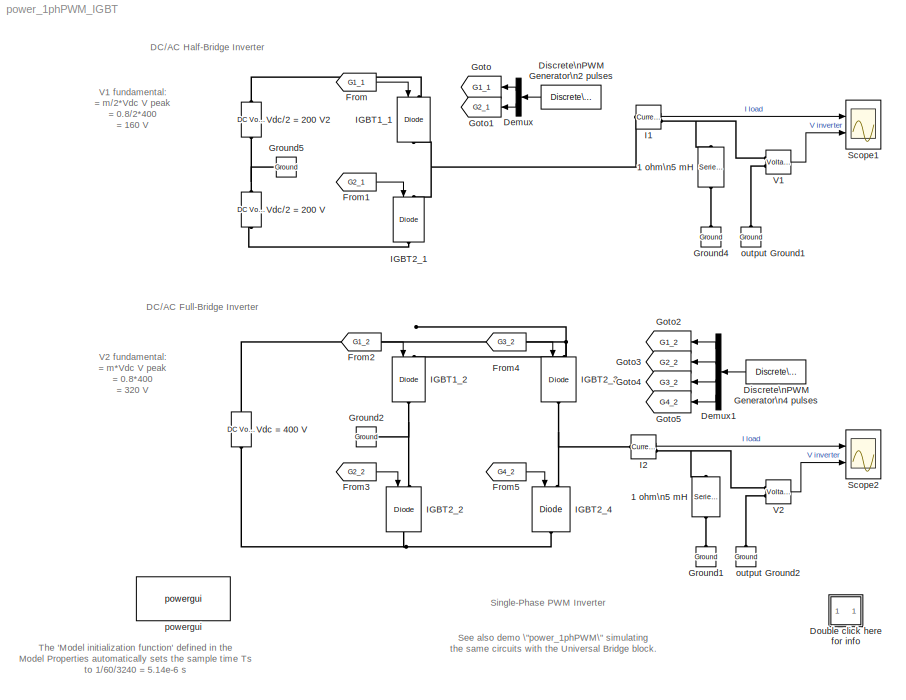
MODEL power_1phPWM_IGBT
KIND model
CONFIG InitFcn = Ts=1/60/3240;
BLOCK [Reference] 1 ohm\n5 mH  REF=powerlib/Elements/Series RLC Branch
  AttributesFormatString = \\n
  BranchType = RL
  Capacitance = []
  Inductance = 5e-03
  InitialCurrent = 0
  InitialVoltage = 0
  LConnTagsString = __new0
  Measurements = None
  Ports = [0, 0, 0, 0, 0, 1, 1]
  RConnTagsString = __new0
  Resistance = 1
  SID = 1
  SetiL0 = off
  Setx0 = off
  SourceBlock = powerlib/Elements/Series RLC Branch
  SourceType = Series RLC Branch
BLOCK [Reference] 1 ohm\n5 mH   REF=powerlib/Elements/Series RLC Branch
  AttributesFormatString = \\n
  BranchType = RL
  Capacitance = []
  Inductance = 5e-03
  InitialCurrent = 0
  InitialVoltage = 0
  LConnTagsString = __new0
  Measurements = None
  Ports = [0, 0, 0, 0, 0, 1, 1]
  RConnTagsString = __new0
  Resistance = 1
  SID = 2
  SetiL0 = off
  Setx0 = off
  SourceBlock = powerlib/Elements/Series RLC Branch
  SourceType = Series RLC Branch
BLOCK [Demux] Demux
  DisplayOption = bar
  Outputs = 2
  Ports = [1, 2]
  SID = 3
BLOCK [Demux] Demux1
  DisplayOption = bar
  Ports = [1, 4]
  SID = 4
BLOCK [Reference] Discrete\nPWM Generator\n2 pulses  REF=powerlib_extras/Discrete \nControl Blocks/Discrete\nPWM Generator
  Fc = 1080
  Freq = 60
  GeneratorMode = 1-arm  bridge (2 pulses)
  Internal = on
  Phase = 0
  Ports = [0, 1]
  SID = 5
  SourceBlock = powerlib_extras/Discrete \nControl Blocks/Discrete\nPWM Generator
  SourceType = Discrete PWM Generator
  Ts = Ts
  mIndex = 0.8
BLOCK [Reference] Discrete\nPWM Generator\n4 pulses  REF=powerlib_extras/Discrete \nControl Blocks/Discrete\nPWM Generator
  Fc = 1080
  Freq = 60
  GeneratorMode = 2-arm  bridge (4 pulses)
  Internal = on
  Phase = 0
  Ports = [0, 1]
  SID = 6
  SourceBlock = powerlib_extras/Discrete \nControl Blocks/Discrete\nPWM Generator
  SourceType = Discrete PWM Generator
  Ts = Ts
  mIndex = 0.8
BLOCK [SubSystem] Double click here for info
  FunctionWithSeparateData = off
  MaskDisplay = disp('?')
  MaskHideContents = off
  MaskIconFrame = on
  MaskIconOpaque = on
  MaskIconRotate = none
  MaskIconUnits = autoscale
  MaskPortRotate = default
  MinAlgLoopOccurrences = off
  Opaque = off
  OpenFcn = showdemo(bdroot(gcb))
  Ports = []
  PropExecContextOutsideSubsystem = off
  RTWSystemCode = Auto
  RequestExecContextInheritance = off
  SID = 7
BLOCK [From] From
  CloseFcn = tagdialog Close
  GotoTag = G1_1
  SID = 8
BLOCK [From] From1
  CloseFcn = tagdialog Close
  GotoTag = G2_1
  SID = 9
BLOCK [From] From2
  CloseFcn = tagdialog Close
  GotoTag = G1_2
  SID = 10
BLOCK [From] From3
  CloseFcn = tagdialog Close
  GotoTag = G2_2
  SID = 11
BLOCK [From] From4
  CloseFcn = tagdialog Close
  GotoTag = G3_2
  SID = 12
BLOCK [From] From5
  CloseFcn = tagdialog Close
  GotoTag = G4_2
  SID = 13
BLOCK [Goto] Goto
  GotoTag = G1_1
  SID = 14
BLOCK [Goto] Goto1
  GotoTag = G2_1
  SID = 15
BLOCK [Goto] Goto2
  GotoTag = G1_2
  SID = 16
BLOCK [Goto] Goto3
  GotoTag = G2_2
  SID = 17
BLOCK [Goto] Goto4
  GotoTag = G3_2
  SID = 18
BLOCK [Goto] Goto5
  GotoTag = G4_2
  SID = 19
BLOCK [Reference] Ground1  REF=powerlib/Elements/Ground
  AttributesFormatString = \\n
  LConnTagsString = a
  Ports = [0, 0, 0, 0, 0, 1]
  SID = 20
  SourceBlock = powerlib/Elements/Ground
  SourceType = Ground
BLOCK [Reference] Ground2  REF=powerlib/Elements/Ground
  AttributesFormatString = \\n
  LConnTagsString = a
  Ports = [0, 0, 0, 0, 0, 1]
  SID = 21
  SourceBlock = powerlib/Elements/Ground
  SourceType = Ground
BLOCK [Reference] Ground4  REF=powerlib/Elements/Ground
  AttributesFormatString = \\n
  LConnTagsString = a
  Ports = [0, 0, 0, 0, 0, 1]
  SID = 22
  SourceBlock = powerlib/Elements/Ground
  SourceType = Ground
BLOCK [Reference] Ground5  REF=powerlib/Elements/Ground
  AttributesFormatString = \\n
  LConnTagsString = a
  Ports = [0, 0, 0, 0, 0, 1]
  SID = 23
  SourceBlock = powerlib/Elements/Ground
  SourceType = Ground
BLOCK [Reference] I1  REF=powerlib/Measurements/Current Measurement
  AttributesFormatString = \\n
  OutputType = Magnitude
  PSBequivalent = 0
  PhasorSimulation = off
  Ports = [0, 1, 0, 0, 0, 1, 1]
  SID = 24
  SourceBlock = powerlib/Measurements/Current Measurement
  SourceType = Current Measurement
  Tag = PoWeRsYsTeMmEaSuReMeNt
BLOCK [Reference] I2  REF=powerlib/Measurements/Current Measurement
  AttributesFormatString = \\n
  OutputType = Magnitude
  PSBequivalent = 0
  PhasorSimulation = off
  Ports = [0, 1, 0, 0, 0, 1, 1]
  SID = 25
  SourceBlock = powerlib/Measurements/Current Measurement
  SourceType = Current Measurement
  Tag = PoWeRsYsTeMmEaSuReMeNt
BLOCK [Reference] IGBT1_1  REF=powerlib/Power\nElectronics/IGBT//Diode
  Cs = inf
  Measurements = off
  Ports = [1, 0, 0, 0, 0, 1, 1]
  Ron = 1e-3
  Rs = 1e5
  SID = 26
  SourceBlock = powerlib/Power\nElectronics/IGBT//Diode
  SourceType = IGBT/Diode
BLOCK [Reference] IGBT1_2  REF=powerlib/Power\nElectronics/IGBT//Diode
  Cs = inf
  Measurements = off
  Ports = [1, 0, 0, 0, 0, 1, 1]
  Ron = 1e-3
  Rs = 1e5
  SID = 27
  SourceBlock = powerlib/Power\nElectronics/IGBT//Diode
  SourceType = IGBT/Diode
BLOCK [Reference] IGBT2_1  REF=powerlib/Power\nElectronics/IGBT//Diode
  Cs = inf
  Measurements = off
  Ports = [1, 0, 0, 0, 0, 1, 1]
  Ron = 1e-3
  Rs = 1e5
  SID = 28
  SourceBlock = powerlib/Power\nElectronics/IGBT//Diode
  SourceType = IGBT/Diode
BLOCK [Reference] IGBT2_2  REF=powerlib/Power\nElectronics/IGBT//Diode
  Cs = inf
  Measurements = off
  Ports = [1, 0, 0, 0, 0, 1, 1]
  Ron = 1e-3
  Rs = 1e5
  SID = 29
  SourceBlock = powerlib/Power\nElectronics/IGBT//Diode
  SourceType = IGBT/Diode
BLOCK [Reference] IGBT2_3  REF=powerlib/Power\nElectronics/IGBT//Diode
  Cs = inf
  Measurements = off
  Ports = [1, 0, 0, 0, 0, 1, 1]
  Ron = 1e-3
  Rs = 1e5
  SID = 30
  SourceBlock = powerlib/Power\nElectronics/IGBT//Diode
  SourceType = IGBT/Diode
BLOCK [Reference] IGBT2_4  REF=powerlib/Power\nElectronics/IGBT//Diode
  Cs = inf
  Measurements = off
  Ports = [1, 0, 0, 0, 0, 1, 1]
  Ron = 1e-3
  Rs = 1e5
  SID = 31
  SourceBlock = powerlib/Power\nElectronics/IGBT//Diode
  SourceType = IGBT/Diode
BLOCK [Scope] Scope1
  DataFormat = StructureWithTime
  Floating = off
  LimitDataPoints = off
  MaxDataPoints = 500000
  NumInputPorts = 2
  Ports = [2]
  SID = 32
  SampleTime = 0
  SaveName = sps1phPWM1_str
  SaveToWorkspace = on
  ShowLegends = off
  TimeRange = 0.1
  YMax = 100~300
  YMin = -100~-300
  ZoomMode = xonly
BLOCK [Scope] Scope2
  DataFormat = StructureWithTime
  Floating = off
  LimitDataPoints = off
  MaxDataPoints = 500000
  NumInputPorts = 2
  Ports = [2]
  SID = 33
  SampleTime = 0
  SaveName = sps1phPWM2_str
  SaveToWorkspace = on
  ShowLegends = off
  TimeRange = 0.1
  YMax = 200~500
  YMin = -200~-500
  ZoomMode = xonly
BLOCK [Reference] V1  REF=powerlib/Measurements/Voltage Measurement
  AttributesFormatString = \\n
  OutputType = Magnitude
  PSBequivalent = 0
  PhasorSimulation = off
  Ports = [0, 1, 0, 0, 0, 2]
  SID = 34
  SourceBlock = powerlib/Measurements/Voltage Measurement
  SourceType = Voltage Measurement
  Tag = PoWeRsYsTeMmEaSuReMeNt
BLOCK [Reference] V2  REF=powerlib/Measurements/Voltage Measurement
  AttributesFormatString = \\n
  OutputType = Magnitude
  PSBequivalent = 0
  PhasorSimulation = off
  Ports = [0, 1, 0, 0, 0, 2]
  SID = 35
  SourceBlock = powerlib/Measurements/Voltage Measurement
  SourceType = Voltage Measurement
  Tag = PoWeRsYsTeMmEaSuReMeNt
BLOCK [Reference] Vdc = 400 V  REF=powerlib/Electrical\nSources/DC Voltage Source
  Amplitude = 400
  AttributesFormatString = \\n
  Description = source block
  Measurements = None
  Ports = [0, 0, 0, 0, 0, 1, 1]
  SID = 36
  SourceBlock = powerlib/Electrical\nSources/DC Voltage Source
  SourceType = DC Voltage Source
BLOCK [Reference] Vdc//2 = 200 V  REF=powerlib/Electrical\nSources/DC Voltage Source
  Amplitude = 200
  AttributesFormatString = \\n
  Description = source block
  Measurements = None
  Ports = [0, 0, 0, 0, 0, 1, 1]
  SID = 37
  SourceBlock = powerlib/Electrical\nSources/DC Voltage Source
  SourceType = DC Voltage Source
BLOCK [Reference] Vdc//2 = 200 V2  REF=powerlib/Electrical\nSources/DC Voltage Source
  Amplitude = 200
  AttributesFormatString = \\n
  Description = source block
  Measurements = None
  Ports = [0, 0, 0, 0, 0, 1, 1]
  SID = 38
  SourceBlock = powerlib/Electrical\nSources/DC Voltage Source
  SourceType = DC Voltage Source
BLOCK [Reference] output Ground1  REF=powerlib/Elements/Ground
  AttributesFormatString = \\n
  LConnTagsString = a
  Ports = [0, 0, 0, 0, 0, 1]
  SID = 39
  SourceBlock = powerlib/Elements/Ground
  SourceType = Ground
BLOCK [Reference] output Ground2  REF=powerlib/Elements/Ground
  AttributesFormatString = \\n
  LConnTagsString = a
  Ports = [0, 0, 0, 0, 0, 1]
  SID = 40
  SourceBlock = powerlib/Elements/Ground
  SourceType = Ground
BLOCK [Reference] powergui  REF=powerlib/powergui
  DisableRonSwitches = off
  DisableSnubberDevices = off
  DisableVfSwitches = off
  DisplayEquations = off
  DisplayStyle = 1
  EnableUseOfTLC = off
  ErrMax = 1e-4
  Frange = [0:2:500]
  FreqAxis = off
  FunctionMessages = off
  HookPort = off
  Interpol = off
  Iterations = 50
  MaxFrequency = 5000
  Pbase = 100e6
  Ports = []
  ResistiveCurrentMeasurement = off
  RestoreLinks = warning
  RmsSteady = 1
  SID = 41
  SPID = off
  SampleTime = Ts
  ShowGrid = off
  SolverType = Tustin
  SourceBlock = powerlib/powergui
  SourceType = PSB option menu block
  StartTime = 0.1-2/60
  SwTol = 0
  Ts = 0
  UnitsV = kV
  UnitsW = MW
  Xlog = on
  Ylog = off
  ZoomFFT = on
  cycles = 2
  display = off
  echomessages = off
  frequency = 60
  frequencyindice = 0
  frequencyindicesteady = 1
  fundamental = 60
  methode = off
  save = off
  structure = sps1phPWM1_str
  variable = ZData
  x0status = blocks
ANNOTATION (root): DC/AC Half-Bridge Inverter
ANNOTATION (root): DC/AC Full-Bridge Inverter
ANNOTATION (root): See also demo \"power_1phPWM\" simulating \nthe same circuits with the Universal Bridge block.
ANNOTATION (root): Single-Phase PWM Inverter
ANNOTATION (root): The 'Model initialization function' defined in the\nModel Properties automatically sets the sample time Ts\nto 1/60/3240 = 5.14e-6 s
ANNOTATION (root): V1 fundamental:\n = m/2*Vdc V peak\n = 0.8/2*400 \n = 160 V
ANNOTATION (root): V2 fundamental:\n = m*Vdc V peak\n = 0.8*400 \n = 320 V
LINE Demux1:1 -> Goto2:1
LINE Demux1:2 -> Goto3:1
LINE Demux1:3 -> Goto4:1
LINE Demux1:4 -> Goto5:1
LINE Demux:1 -> Goto:1
LINE Demux:2 -> Goto1:1
LINE Discrete\nPWM Generator\n2 pulses:1 -> Demux:1
LINE Discrete\nPWM Generator\n4 pulses:1 -> Demux1:1
LINE From1:1 -> IGBT2_1:1
LINE From2:1 -> IGBT1_2:1
LINE From3:1 -> IGBT2_2:1
LINE From4:1 -> IGBT2_3:1
LINE From5:1 -> IGBT2_4:1
LINE From:1 -> IGBT1_1:1
LINE I1:1 -> Scope1:1
LINE I2:1 -> Scope2:1
LINE V1:1 -> Scope1:2
LINE V2:1 -> Scope2:2
PNET net1: 1 ohm\n5 mH :LConn1 -- I2:RConn1 -- V2:LConn1
PLINE 1 ohm\n5 mH :RConn1 -- Ground1:LConn1
PNET net2: 1 ohm\n5 mH:LConn1 -- I1:RConn1 -- V1:LConn1
PLINE 1 ohm\n5 mH:RConn1 -- Ground4:LConn1
PNET net3: Ground2:LConn1 -- IGBT1_2:RConn1 -- IGBT2_2:LConn1
PNET net4: Ground5:LConn1 -- Vdc//2 = 200 V2:LConn1 -- Vdc//2 = 200 V:RConn1
PNET net5: I1:LConn1 -- IGBT1_1:RConn1 -- IGBT2_1:LConn1
PNET net6: I2:LConn1 -- IGBT2_3:RConn1 -- IGBT2_4:LConn1
PLINE IGBT1_1:LConn1 -- Vdc//2 = 200 V2:RConn1
PNET net7: IGBT1_2:LConn1 -- IGBT2_3:LConn1 -- Vdc = 400 V:RConn1
PLINE IGBT2_1:RConn1 -- Vdc//2 = 200 V:LConn1
PNET net8: IGBT2_2:RConn1 -- IGBT2_4:RConn1 -- Vdc = 400 V:LConn1
PLINE V1:LConn2 -- output Ground1:LConn1
PLINE V2:LConn2 -- output Ground2:LConn1
note: PNET lines group multi-terminal physical nets as a canonical sorted terminal list (undirected conserving connections); 2-terminal nets keep the pairwise PLINE form
